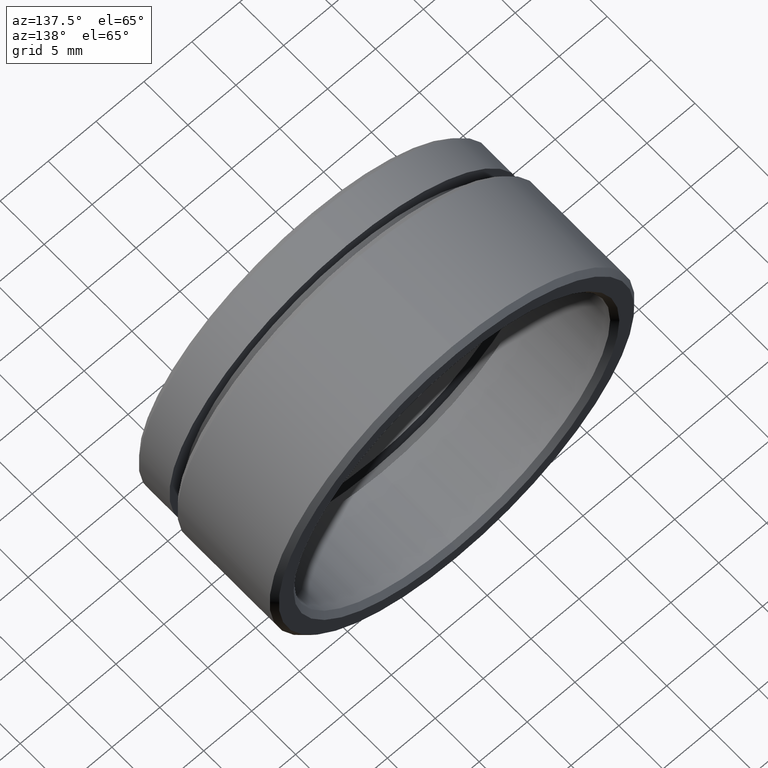
[diagram: clean part render]
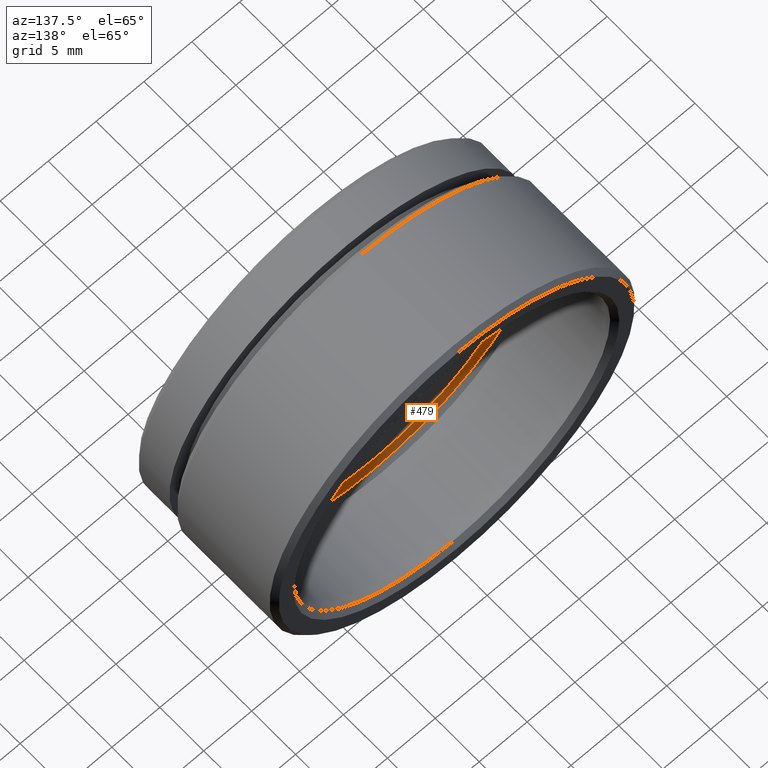
[diagram: same view with one face highlighted and labeled with its STEP entity id]
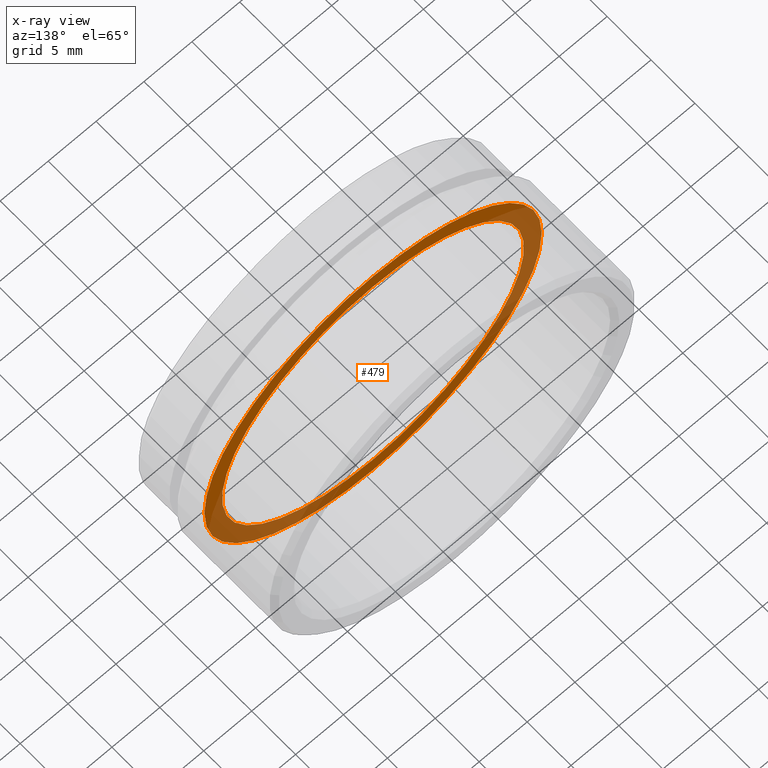
[diagram: x-ray of the same camera — body ghosted, the highlighted face saturated]
A machine part, auxiliary view. The second image highlights one B-rep face of the part: STEP entity #479.
The next image is the same camera in x-ray: the body ghosted, the highlighted face saturated — about 41% of this face is hidden behind the body in this view.
In plain terms, the highlighted planar face has unit normal (0, 1, 0).
Its self-contained STEP definition (entity closure, byte-faithful):
#49 = CARTESIAN_POINT ( 'NONE',  ( 0.0000000000000000000, 7.000000000000000000, 0.0000000000000000000 ) ) ;
#52 = DIRECTION ( 'NONE',  ( -0.0000000000000000000, -1.000000000000000000, -0.0000000000000000000 ) ) ;
#54 = DIRECTION ( 'NONE',  ( 0.0000000000000000000, 0.0000000000000000000, -1.000000000000000000 ) ) ;
#57 = AXIS2_PLACEMENT_3D ( 'NONE', #49, #52, #54 ) ;
#65 = CARTESIAN_POINT ( 'NONE',  ( 0.0000000000000000000, 7.000000000000000000, 0.0000000000000000000 ) ) ;
#67 = DIRECTION ( 'NONE',  ( -0.0000000000000000000, -1.000000000000000000, -0.0000000000000000000 ) ) ;
#68 = DIRECTION ( 'NONE',  ( 0.0000000000000000000, 0.0000000000000000000, -1.000000000000000000 ) ) ;
#72 = PLANE ( 'NONE',  #801 ) ;
#76 = VERTEX_POINT ( 'NONE', #99 ) ;
#89 = CARTESIAN_POINT ( 'NONE',  ( 17.60000000000000100, 7.000000000000000000, 0.0000000000000000000 ) ) ;
#95 = ORIENTED_EDGE ( 'NONE', *, *, #719, .F. ) ;
#99 = CARTESIAN_POINT ( 'NONE',  ( 1.928818708657081700E-015, 7.000000000000000000, 15.75000000000000400 ) ) ;
#112 = DIRECTION ( 'NONE',  ( 0.0000000000000000000, 1.000000000000000000, 0.0000000000000000000 ) ) ;
#114 = DIRECTION ( 'NONE',  ( 0.0000000000000000000, -0.0000000000000000000, 1.000000000000000000 ) ) ;
#168 = CARTESIAN_POINT ( 'NONE',  ( 0.0000000000000000000, 7.000000000000000000, -17.60000000000000100 ) ) ;
#299 = EDGE_LOOP ( 'NONE', ( #374, #319 ) ) ;
#319 = ORIENTED_EDGE ( 'NONE', *, *, #425, .T. ) ;
#374 = ORIENTED_EDGE ( 'NONE', *, *, #796, .T. ) ;
#409 = AXIS2_PLACEMENT_3D ( 'NONE', #580, #584, #591 ) ;
#425 = EDGE_CURVE ( 'NONE', #76, #790, #787, .T. ) ;
#427 = CARTESIAN_POINT ( 'NONE',  ( 0.0000000000000000000, 7.000000000000000000, 0.0000000000000000000 ) ) ;
#429 = DIRECTION ( 'NONE',  ( -0.0000000000000000000, -1.000000000000000000, -0.0000000000000000000 ) ) ;
#430 = DIRECTION ( 'NONE',  ( 0.0000000000000000000, 0.0000000000000000000, -1.000000000000000000 ) ) ;
#435 = EDGE_CURVE ( 'NONE', #774, #571, #786, .T. ) ;
#440 = ORIENTED_EDGE ( 'NONE', *, *, #435, .F. ) ;
#479 = ADVANCED_FACE ( 'NONE', ( #794, #797 ), #72, .T. ) ;
#492 = CARTESIAN_POINT ( 'NONE',  ( 2.155378366499341600E-015, 7.000000000000000000, 17.60000000000000100 ) ) ;
#524 = EDGE_LOOP ( 'NONE', ( #95, #440 ) ) ;
#530 = CIRCLE ( 'NONE', #559, 17.60000000000000100 ) ;
#559 = AXIS2_PLACEMENT_3D ( 'NONE', #427, #429, #430 ) ;
#569 = CARTESIAN_POINT ( 'NONE',  ( 0.0000000000000000000, 7.000000000000000000, -15.75000000000000400 ) ) ;
#571 = VERTEX_POINT ( 'NONE', #168 ) ;
#580 = CARTESIAN_POINT ( 'NONE',  ( 0.0000000000000000000, 7.000000000000000000, 0.0000000000000000000 ) ) ;
#584 = DIRECTION ( 'NONE',  ( -0.0000000000000000000, -1.000000000000000000, -0.0000000000000000000 ) ) ;
#591 = DIRECTION ( 'NONE',  ( 0.0000000000000000000, 0.0000000000000000000, -1.000000000000000000 ) ) ;
#643 = CIRCLE ( 'NONE', #409, 15.75000000000000400 ) ;
#719 = EDGE_CURVE ( 'NONE', #571, #774, #530, .T. ) ;
#774 = VERTEX_POINT ( 'NONE', #492 ) ;
#786 = CIRCLE ( 'NONE', #863, 17.60000000000000100 ) ;
#787 = CIRCLE ( 'NONE', #57, 15.75000000000000400 ) ;
#790 = VERTEX_POINT ( 'NONE', #569 ) ;
#794 = FACE_BOUND ( 'NONE', #299, .T. ) ;
#796 = EDGE_CURVE ( 'NONE', #790, #76, #643, .T. ) ;
#797 = FACE_OUTER_BOUND ( 'NONE', #524, .T. ) ;
#801 = AXIS2_PLACEMENT_3D ( 'NONE', #89, #112, #114 ) ;
#863 = AXIS2_PLACEMENT_3D ( 'NONE', #65, #67, #68 ) ;